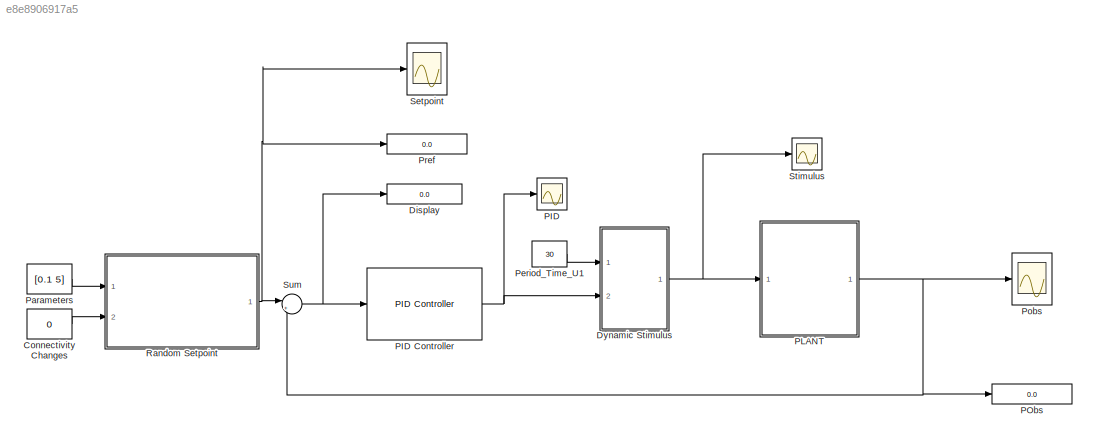
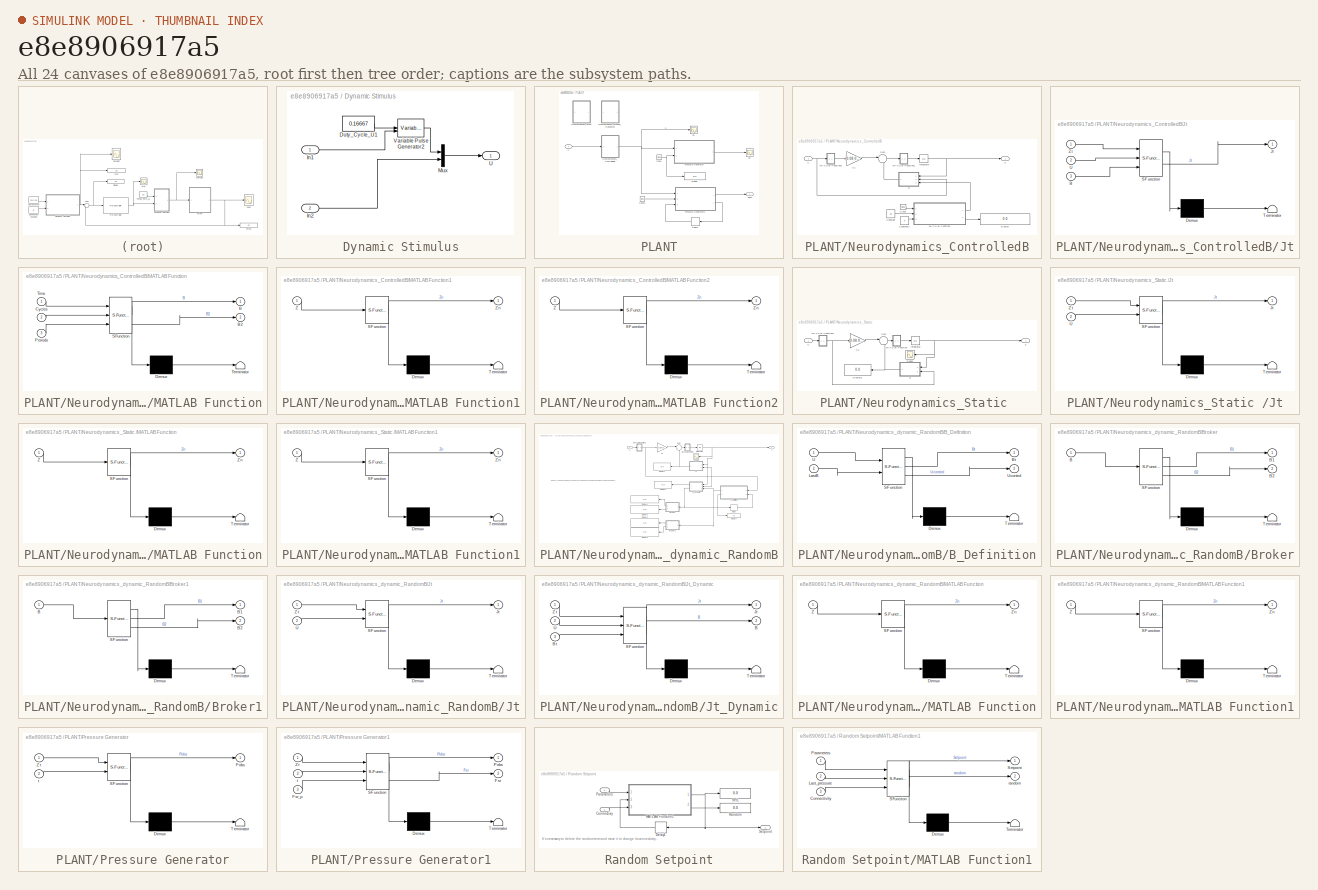
[diagram: thumbnail index - all 24 canvases of the model, root first then tree order]
MODEL slx_e8e8906917a5
KIND model
CONFIG AbsTol = auto
CONFIG EnableMultiTasking = off
CONFIG FixedStep = 0.09
CONFIG MaxStep = auto
CONFIG MinStep = auto
CONFIG RelTol = 1e-10
CONFIG SampleTimeConstraint = Unconstrained
CONFIG SolverName = VariableStepAuto
CONFIG StartTime = 0.0
CONFIG StopTime = 180
BLOCK [Constant] Connectivity Changes
  Value = 0
BLOCK [Display] Display
  Decimation = 1
  Ports = [1]
BLOCK [SubSystem] Dynamic Stimulus
  Ports = [2, 1]
  RequestExecContextInheritance = off
BLOCK [Constant] Dynamic Stimulus/Duty_Cycle_U1
  OutMax = [0.8]
  OutMin = [0]
  Value = 0.16667
BLOCK [Inport] Dynamic Stimulus/In1
BLOCK [Inport] Dynamic Stimulus/In2
  Port = 2
BLOCK [Mux] Dynamic Stimulus/Mux
  DisplayOption = bar
  Inputs = 2
  Ports = [2, 1]
BLOCK [Outport] Dynamic Stimulus/U
BLOCK [VariablePulseGenerator] Dynamic Stimulus/Variable Pulse Generator2
  RunAtFixedTimeIntervals = on
  SampleTime = 1/10.4
BLOCK [Scope] PID
  Floating = off
  NumInputPorts = 1
  Ports = [1]
  ScopeSpecificationString = Simulink.scopes.TimeScopeBlockCfg('CurrentConfiguration', extmgr.ConfigurationSet(extmgr.Configuration('Core','General UI',true,'FigureColor',[1 1 1]),extmgr.Configuration('Core','Source UI',true),extmgr.Configuration('Sources','WiredSimulink',true,'DataLoggingVariableName','ScopeData1'),extmgr.Configuration('Visuals','Time Domain',true,'SerializedDisplays',{struct('MinYLimReal','-3.80534','MaxYLi...<+1528ch>
BLOCK [Reference] PID Controller  REF=slpidlib/PID Controller
  Ports = [1, 1]
  SourceBlock = slpidlib/PID Controller
  SourceProductBaseCode = SL
  SourceType = PID 1dof
BLOCK [SubSystem] PLANT
  Ports = [1, 1]
  RequestExecContextInheritance = off
BLOCK [Clock] PLANT/Clock
BLOCK [Clock] PLANT/Clock1
BLOCK [Delay] PLANT/Delay2
  DelayLength = 1
  InitialCondition = 0.0001
  InputPortMap = u0
  Ports = [1, 1]
BLOCK [Display] PLANT/Display
  Decimation = 1
  Ports = [1]
BLOCK [SubSystem] PLANT/Neurodynamics_ControlledB
  Ports = [1, 1]
  RequestExecContextInheritance = off
BLOCK [Gain] PLANT/Neurodynamics_ControlledB/C1
  Gain = [0.08 0;0.06 0]
  Multiplication = Matrix(K*u) (u vector)
BLOCK [Clock] PLANT/Neurodynamics_ControlledB/Clock
BLOCK [Constant] PLANT/Neurodynamics_ControlledB/Constant
  Value = 30
BLOCK [Constant] PLANT/Neurodynamics_ControlledB/Constant1
  Value = 6
BLOCK [Display] PLANT/Neurodynamics_ControlledB/Display
  Decimation = 1
  Ports = [1]
BLOCK [Integrator] PLANT/Neurodynamics_ControlledB/Integrator
  Ports = [1, 1]
BLOCK [SubSystem] PLANT/Neurodynamics_ControlledB/Jt
  ErrorFcn = Stateflow.Translate.translate
  PermitHierarchicalResolution = ExplicitOnly
  Ports = [3, 1]
  RequestExecContextInheritance = off
  SFBlockType = MATLAB Function
  TreatAsAtomicUnit = on
BLOCK [Demux] PLANT/Neurodynamics_ControlledB/Jt/ Demux 
  Outputs = 1
  Ports = [1, 1]
BLOCK [S-Function] PLANT/Neurodynamics_ControlledB/Jt/ SFunction 
  EnableBusSupport = on
  FunctionName = sf_sfun
  PortCounts = [3 2]
  Ports = [3, 2]
  SFcnIsStateOwnerBlock = off
  SFunctionDeploymentMode = off
  Tag = Stateflow S-Function 12
BLOCK [Terminator] PLANT/Neurodynamics_ControlledB/Jt/ Terminator 
BLOCK [Inport] PLANT/Neurodynamics_ControlledB/Jt/B
  Port = 3
BLOCK [Outport] PLANT/Neurodynamics_ControlledB/Jt/Jt
BLOCK [Inport] PLANT/Neurodynamics_ControlledB/Jt/U
  Port = 2
BLOCK [Inport] PLANT/Neurodynamics_ControlledB/Jt/Zt
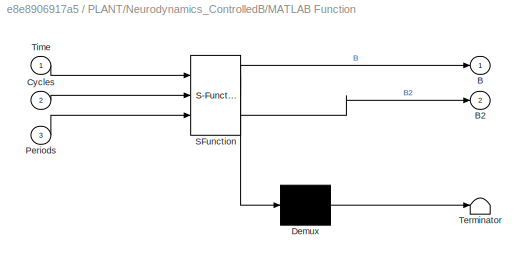
BLOCK [SubSystem] PLANT/Neurodynamics_ControlledB/MATLAB Function
  ErrorFcn = Stateflow.Translate.translate
  PermitHierarchicalResolution = ExplicitOnly
  Ports = [3, 2]
  RequestExecContextInheritance = off
  SFBlockType = MATLAB Function
  TreatAsAtomicUnit = on
BLOCK [Demux] PLANT/Neurodynamics_ControlledB/MATLAB Function/ Demux 
  Outputs = 1
  Ports = [1, 1]
BLOCK [S-Function] PLANT/Neurodynamics_ControlledB/MATLAB Function/ SFunction 
  EnableBusSupport = on
  FunctionName = sf_sfun
  PortCounts = [3 3]
  Ports = [3, 3]
  SFcnIsStateOwnerBlock = off
  SFunctionDeploymentMode = off
  Tag = Stateflow S-Function 5
BLOCK [Terminator] PLANT/Neurodynamics_ControlledB/MATLAB Function/ Terminator 
BLOCK [Outport] PLANT/Neurodynamics_ControlledB/MATLAB Function/B
BLOCK [Outport] PLANT/Neurodynamics_ControlledB/MATLAB Function/B2
  Port = 2
BLOCK [Inport] PLANT/Neurodynamics_ControlledB/MATLAB Function/Cycles
  Port = 2
BLOCK [Inport] PLANT/Neurodynamics_ControlledB/MATLAB Function/Periods
  Port = 3
BLOCK [Inport] PLANT/Neurodynamics_ControlledB/MATLAB Function/Time
BLOCK [SubSystem] PLANT/Neurodynamics_ControlledB/MATLAB Function1
  ErrorFcn = Stateflow.Translate.translate
  PermitHierarchicalResolution = ExplicitOnly
  Ports = [1, 1]
  RequestExecContextInheritance = off
  SFBlockType = MATLAB Function
  TreatAsAtomicUnit = on
BLOCK [Demux] PLANT/Neurodynamics_ControlledB/MATLAB Function1/ Demux 
  Outputs = 1
  Ports = [1, 1]
BLOCK [S-Function] PLANT/Neurodynamics_ControlledB/MATLAB Function1/ SFunction 
  EnableBusSupport = on
  FunctionName = sf_sfun
  PortCounts = [1 2]
  Ports = [1, 2]
  SFcnIsStateOwnerBlock = off
  SFunctionDeploymentMode = off
  Tag = Stateflow S-Function 7
BLOCK [Terminator] PLANT/Neurodynamics_ControlledB/MATLAB Function1/ Terminator 
BLOCK [Inport] PLANT/Neurodynamics_ControlledB/MATLAB Function1/Z
BLOCK [Outport] PLANT/Neurodynamics_ControlledB/MATLAB Function1/Zn
BLOCK [SubSystem] PLANT/Neurodynamics_ControlledB/MATLAB Function2
  ErrorFcn = Stateflow.Translate.translate
  PermitHierarchicalResolution = ExplicitOnly
  Ports = [1, 1]
  RequestExecContextInheritance = off
  SFBlockType = MATLAB Function
  TreatAsAtomicUnit = on
BLOCK [Demux] PLANT/Neurodynamics_ControlledB/MATLAB Function2/ Demux 
  Outputs = 1
  Ports = [1, 1]
BLOCK [S-Function] PLANT/Neurodynamics_ControlledB/MATLAB Function2/ SFunction 
  EnableBusSupport = on
  FunctionName = sf_sfun
  PortCounts = [1 2]
  Ports = [1, 2]
  SFcnIsStateOwnerBlock = off
  SFunctionDeploymentMode = off
  Tag = Stateflow S-Function 8
BLOCK [Terminator] PLANT/Neurodynamics_ControlledB/MATLAB Function2/ Terminator 
BLOCK [Inport] PLANT/Neurodynamics_ControlledB/MATLAB Function2/Z
BLOCK [Outport] PLANT/Neurodynamics_ControlledB/MATLAB Function2/Zn
BLOCK [Sum] PLANT/Neurodynamics_ControlledB/Sum
  Inputs = |++
  Ports = [2, 1]
BLOCK [Inport] PLANT/Neurodynamics_ControlledB/U
BLOCK [Outport] PLANT/Neurodynamics_ControlledB/Z
BLOCK [SubSystem] PLANT/Neurodynamics_Static 
  Commented = on
  Ports = [1, 1]
  RequestExecContextInheritance = off
BLOCK [Gain] PLANT/Neurodynamics_Static /C1
  Gain = [0.08 0;0.06 0]
  Multiplication = Matrix(K*u) (u vector)
BLOCK [Display] PLANT/Neurodynamics_Static /Display1
  Decimation = 1
  Ports = [1]
BLOCK [Integrator] PLANT/Neurodynamics_Static /Integrator
  Ports = [1, 1]
BLOCK [SubSystem] PLANT/Neurodynamics_Static /Jt
  ErrorFcn = Stateflow.Translate.translate
  PermitHierarchicalResolution = ExplicitOnly
  Ports = [2, 1]
  RequestExecContextInheritance = off
  SFBlockType = MATLAB Function
  TreatAsAtomicUnit = on
BLOCK [Demux] PLANT/Neurodynamics_Static /Jt/ Demux 
  Outputs = 1
  Ports = [1, 1]
BLOCK [S-Function] PLANT/Neurodynamics_Static /Jt/ SFunction 
  EnableBusSupport = on
  FunctionName = sf_sfun
  PortCounts = [2 2]
  Ports = [2, 2]
  SFcnIsStateOwnerBlock = off
  SFunctionDeploymentMode = off
  Tag = Stateflow S-Function 18
BLOCK [Terminator] PLANT/Neurodynamics_Static /Jt/ Terminator 
BLOCK [Outport] PLANT/Neurodynamics_Static /Jt/Jt
BLOCK [Inport] PLANT/Neurodynamics_Static /Jt/U
  Port = 2
BLOCK [Inport] PLANT/Neurodynamics_Static /Jt/Zt
BLOCK [SubSystem] PLANT/Neurodynamics_Static /MATLAB Function
  ErrorFcn = Stateflow.Translate.translate
  PermitHierarchicalResolution = ExplicitOnly
  Ports = [1, 1]
  RequestExecContextInheritance = off
  SFBlockType = MATLAB Function
  TreatAsAtomicUnit = on
BLOCK [Demux] PLANT/Neurodynamics_Static /MATLAB Function/ Demux 
  Outputs = 1
  Ports = [1, 1]
BLOCK [S-Function] PLANT/Neurodynamics_Static /MATLAB Function/ SFunction 
  EnableBusSupport = on
  FunctionName = sf_sfun
  PortCounts = [1 2]
  Ports = [1, 2]
  SFcnIsStateOwnerBlock = off
  SFunctionDeploymentMode = off
  Tag = Stateflow S-Function 20
BLOCK [Terminator] PLANT/Neurodynamics_Static /MATLAB Function/ Terminator 
BLOCK [Inport] PLANT/Neurodynamics_Static /MATLAB Function/Z
BLOCK [Outport] PLANT/Neurodynamics_Static /MATLAB Function/Zn
BLOCK [SubSystem] PLANT/Neurodynamics_Static /MATLAB Function1
  ErrorFcn = Stateflow.Translate.translate
  PermitHierarchicalResolution = ExplicitOnly
  Ports = [1, 1]
  RequestExecContextInheritance = off
  SFBlockType = MATLAB Function
  TreatAsAtomicUnit = on
BLOCK [Demux] PLANT/Neurodynamics_Static /MATLAB Function1/ Demux 
  Outputs = 1
  Ports = [1, 1]
BLOCK [S-Function] PLANT/Neurodynamics_Static /MATLAB Function1/ SFunction 
  EnableBusSupport = on
  FunctionName = sf_sfun
  PortCounts = [1 2]
  Ports = [1, 2]
  SFcnIsStateOwnerBlock = off
  SFunctionDeploymentMode = off
  Tag = Stateflow S-Function 21
BLOCK [Terminator] PLANT/Neurodynamics_Static /MATLAB Function1/ Terminator 
BLOCK [Inport] PLANT/Neurodynamics_Static /MATLAB Function1/Z
BLOCK [Outport] PLANT/Neurodynamics_Static /MATLAB Function1/Zn
BLOCK [Scope] PLANT/Neurodynamics_Static /Scope
  Floating = off
  NumInputPorts = 1
  Ports = [1]
  ScopeSpecificationString = Simulink.scopes.TimeScopeBlockCfg('CurrentConfiguration', extmgr.ConfigurationSet(extmgr.Configuration('Core','General UI',true),extmgr.Configuration('Core','Source UI',true),extmgr.Configuration('Sources','WiredSimulink',true,'DataLoggingVariableName','ScopeData1'),extmgr.Configuration('Visuals','Time Domain',true,'SerializedDisplays',{struct('MinYLimReal','-270.33117','MaxYLimReal','30.99894','Y...<+1427ch>
BLOCK [Sum] PLANT/Neurodynamics_Static /Sum
  Inputs = |++
  Ports = [2, 1]
BLOCK [Inport] PLANT/Neurodynamics_Static /U
BLOCK [Outport] PLANT/Neurodynamics_Static /Z
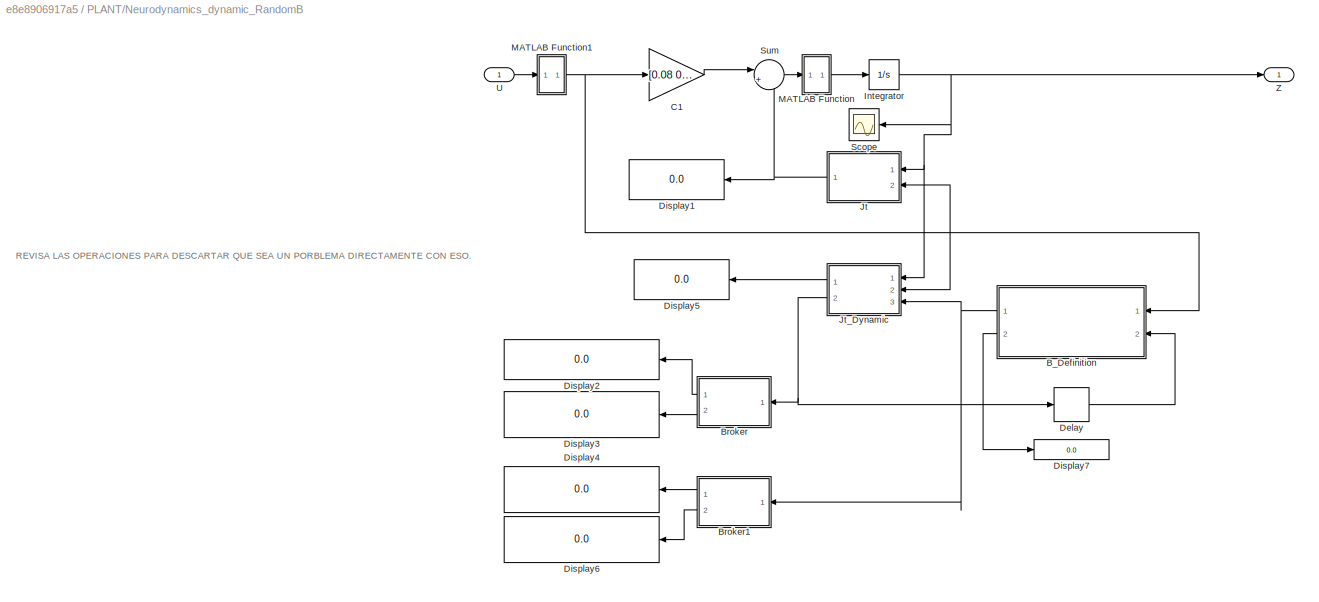
BLOCK [SubSystem] PLANT/Neurodynamics_dynamic_RandomB
  Commented = on
  Ports = [1, 1]
  RequestExecContextInheritance = off
BLOCK [SubSystem] PLANT/Neurodynamics_dynamic_RandomB/B_Definition
  ErrorFcn = Stateflow.Translate.translate
  PermitHierarchicalResolution = ExplicitOnly
  Ports = [2, 2]
  RequestExecContextInheritance = off
  SFBlockType = MATLAB Function
  TreatAsAtomicUnit = on
BLOCK [Demux] PLANT/Neurodynamics_dynamic_RandomB/B_Definition/ Demux 
  Outputs = 1
  Ports = [1, 1]
BLOCK [S-Function] PLANT/Neurodynamics_dynamic_RandomB/B_Definition/ SFunction 
  EnableBusSupport = on
  FunctionName = sf_sfun
  PortCounts = [2 3]
  Ports = [2, 3]
  SFcnIsStateOwnerBlock = off
  SFunctionDeploymentMode = off
  Tag = Stateflow S-Function 10
BLOCK [Terminator] PLANT/Neurodynamics_dynamic_RandomB/B_Definition/ Terminator 
BLOCK [Outport] PLANT/Neurodynamics_dynamic_RandomB/B_Definition/Bt
BLOCK [Inport] PLANT/Neurodynamics_dynamic_RandomB/B_Definition/LastB
  Port = 2
BLOCK [Inport] PLANT/Neurodynamics_dynamic_RandomB/B_Definition/U
BLOCK [Outport] PLANT/Neurodynamics_dynamic_RandomB/B_Definition/Ucontrol
  Port = 2
BLOCK [SubSystem] PLANT/Neurodynamics_dynamic_RandomB/Broker
  ErrorFcn = Stateflow.Translate.translate
  PermitHierarchicalResolution = ExplicitOnly
  Ports = [1, 2]
  RequestExecContextInheritance = off
  SFBlockType = MATLAB Function
  TreatAsAtomicUnit = on
BLOCK [Demux] PLANT/Neurodynamics_dynamic_RandomB/Broker/ Demux 
  Outputs = 1
  Ports = [1, 1]
BLOCK [S-Function] PLANT/Neurodynamics_dynamic_RandomB/Broker/ SFunction 
  EnableBusSupport = on
  FunctionName = sf_sfun
  PortCounts = [1 3]
  Ports = [1, 3]
  SFcnIsStateOwnerBlock = off
  SFunctionDeploymentMode = off
  Tag = Stateflow S-Function 3
BLOCK [Terminator] PLANT/Neurodynamics_dynamic_RandomB/Broker/ Terminator 
BLOCK [Inport] PLANT/Neurodynamics_dynamic_RandomB/Broker/B
BLOCK [Outport] PLANT/Neurodynamics_dynamic_RandomB/Broker/B1
BLOCK [Outport] PLANT/Neurodynamics_dynamic_RandomB/Broker/B2
  Port = 2
BLOCK [SubSystem] PLANT/Neurodynamics_dynamic_RandomB/Broker1
  ErrorFcn = Stateflow.Translate.translate
  PermitHierarchicalResolution = ExplicitOnly
  Ports = [1, 2]
  RequestExecContextInheritance = off
  SFBlockType = MATLAB Function
  TreatAsAtomicUnit = on
BLOCK [Demux] PLANT/Neurodynamics_dynamic_RandomB/Broker1/ Demux 
  Outputs = 1
  Ports = [1, 1]
BLOCK [S-Function] PLANT/Neurodynamics_dynamic_RandomB/Broker1/ SFunction 
  EnableBusSupport = on
  FunctionName = sf_sfun
  PortCounts = [1 3]
  Ports = [1, 3]
  SFcnIsStateOwnerBlock = off
  SFunctionDeploymentMode = off
  Tag = Stateflow S-Function 6
BLOCK [Terminator] PLANT/Neurodynamics_dynamic_RandomB/Broker1/ Terminator 
BLOCK [Inport] PLANT/Neurodynamics_dynamic_RandomB/Broker1/B
BLOCK [Outport] PLANT/Neurodynamics_dynamic_RandomB/Broker1/B1
BLOCK [Outport] PLANT/Neurodynamics_dynamic_RandomB/Broker1/B2
  Port = 2
BLOCK [Gain] PLANT/Neurodynamics_dynamic_RandomB/C1
  Gain = [0.08 0;0.06 0]
  Multiplication = Matrix(K*u) (u vector)
BLOCK [Delay] PLANT/Neurodynamics_dynamic_RandomB/Delay
  DelayLength = 1
  InitialCondition = 0
  InputPortMap = u0
  NameLocation = top
  Ports = [1, 1]
BLOCK [Display] PLANT/Neurodynamics_dynamic_RandomB/Display1
  Decimation = 1
  Ports = [1]
BLOCK [Display] PLANT/Neurodynamics_dynamic_RandomB/Display2
  Decimation = 1
  Ports = [1]
BLOCK [Display] PLANT/Neurodynamics_dynamic_RandomB/Display3
  Decimation = 1
  Ports = [1]
BLOCK [Display] PLANT/Neurodynamics_dynamic_RandomB/Display4
  Decimation = 1
  Ports = [1]
BLOCK [Display] PLANT/Neurodynamics_dynamic_RandomB/Display5
  Decimation = 1
  Ports = [1]
BLOCK [Display] PLANT/Neurodynamics_dynamic_RandomB/Display6
  Decimation = 1
  Ports = [1]
BLOCK [Display] PLANT/Neurodynamics_dynamic_RandomB/Display7
  Decimation = 1
  Ports = [1]
BLOCK [Integrator] PLANT/Neurodynamics_dynamic_RandomB/Integrator
  Ports = [1, 1]
BLOCK [SubSystem] PLANT/Neurodynamics_dynamic_RandomB/Jt
  ErrorFcn = Stateflow.Translate.translate
  PermitHierarchicalResolution = ExplicitOnly
  Ports = [2, 1]
  RequestExecContextInheritance = off
  SFBlockType = MATLAB Function
  TreatAsAtomicUnit = on
BLOCK [Demux] PLANT/Neurodynamics_dynamic_RandomB/Jt/ Demux 
  Outputs = 1
  Ports = [1, 1]
BLOCK [S-Function] PLANT/Neurodynamics_dynamic_RandomB/Jt/ SFunction 
  EnableBusSupport = on
  FunctionName = sf_sfun
  PortCounts = [2 2]
  Ports = [2, 2]
  SFcnIsStateOwnerBlock = off
  SFunctionDeploymentMode = off
  Tag = Stateflow S-Function 11
BLOCK [Terminator] PLANT/Neurodynamics_dynamic_RandomB/Jt/ Terminator 
BLOCK [Outport] PLANT/Neurodynamics_dynamic_RandomB/Jt/Jt
BLOCK [Inport] PLANT/Neurodynamics_dynamic_RandomB/Jt/U
  Port = 2
BLOCK [Inport] PLANT/Neurodynamics_dynamic_RandomB/Jt/Zt
BLOCK [SubSystem] PLANT/Neurodynamics_dynamic_RandomB/Jt_Dynamic
  ErrorFcn = Stateflow.Translate.translate
  PermitHierarchicalResolution = ExplicitOnly
  Ports = [3, 2]
  RequestExecContextInheritance = off
  SFBlockType = MATLAB Function
  TreatAsAtomicUnit = on
BLOCK [Demux] PLANT/Neurodynamics_dynamic_RandomB/Jt_Dynamic/ Demux 
  Outputs = 1
  Ports = [1, 1]
BLOCK [S-Function] PLANT/Neurodynamics_dynamic_RandomB/Jt_Dynamic/ SFunction 
  EnableBusSupport = on
  FunctionName = sf_sfun
  PortCounts = [3 3]
  Ports = [3, 3]
  SFcnIsStateOwnerBlock = off
  SFunctionDeploymentMode = off
  Tag = Stateflow S-Function 9
BLOCK [Terminator] PLANT/Neurodynamics_dynamic_RandomB/Jt_Dynamic/ Terminator 
BLOCK [Outport] PLANT/Neurodynamics_dynamic_RandomB/Jt_Dynamic/B
  Port = 2
BLOCK [Inport] PLANT/Neurodynamics_dynamic_RandomB/Jt_Dynamic/Bt
  Port = 3
BLOCK [Outport] PLANT/Neurodynamics_dynamic_RandomB/Jt_Dynamic/Jt
BLOCK [Inport] PLANT/Neurodynamics_dynamic_RandomB/Jt_Dynamic/U
  Port = 2
BLOCK [Inport] PLANT/Neurodynamics_dynamic_RandomB/Jt_Dynamic/Zt
BLOCK [SubSystem] PLANT/Neurodynamics_dynamic_RandomB/MATLAB Function
  ErrorFcn = Stateflow.Translate.translate
  PermitHierarchicalResolution = ExplicitOnly
  Ports = [1, 1]
  RequestExecContextInheritance = off
  SFBlockType = MATLAB Function
  TreatAsAtomicUnit = on
BLOCK [Demux] PLANT/Neurodynamics_dynamic_RandomB/MATLAB Function/ Demux 
  Outputs = 1
  Ports = [1, 1]
BLOCK [S-Function] PLANT/Neurodynamics_dynamic_RandomB/MATLAB Function/ SFunction 
  EnableBusSupport = on
  FunctionName = sf_sfun
  PortCounts = [1 2]
  Ports = [1, 2]
  SFcnIsStateOwnerBlock = off
  SFunctionDeploymentMode = off
  Tag = Stateflow S-Function 13
BLOCK [Terminator] PLANT/Neurodynamics_dynamic_RandomB/MATLAB Function/ Terminator 
BLOCK [Inport] PLANT/Neurodynamics_dynamic_RandomB/MATLAB Function/Z
BLOCK [Outport] PLANT/Neurodynamics_dynamic_RandomB/MATLAB Function/Zn
BLOCK [SubSystem] PLANT/Neurodynamics_dynamic_RandomB/MATLAB Function1
  ErrorFcn = Stateflow.Translate.translate
  PermitHierarchicalResolution = ExplicitOnly
  Ports = [1, 1]
  RequestExecContextInheritance = off
  SFBlockType = MATLAB Function
  TreatAsAtomicUnit = on
BLOCK [Demux] PLANT/Neurodynamics_dynamic_RandomB/MATLAB Function1/ Demux 
  Outputs = 1
  Ports = [1, 1]
BLOCK [S-Function] PLANT/Neurodynamics_dynamic_RandomB/MATLAB Function1/ SFunction 
  EnableBusSupport = on
  FunctionName = sf_sfun
  PortCounts = [1 2]
  Ports = [1, 2]
  SFcnIsStateOwnerBlock = off
  SFunctionDeploymentMode = off
  Tag = Stateflow S-Function 14
BLOCK [Terminator] PLANT/Neurodynamics_dynamic_RandomB/MATLAB Function1/ Terminator 
BLOCK [Inport] PLANT/Neurodynamics_dynamic_RandomB/MATLAB Function1/Z
BLOCK [Outport] PLANT/Neurodynamics_dynamic_RandomB/MATLAB Function1/Zn
BLOCK [Scope] PLANT/Neurodynamics_dynamic_RandomB/Scope
  Floating = off
  NumInputPorts = 1
  Ports = [1]
  ScopeSpecificationString = Simulink.scopes.TimeScopeBlockCfg('CurrentConfiguration', extmgr.ConfigurationSet(extmgr.Configuration('Core','General UI',true),extmgr.Configuration('Core','Source UI',true),extmgr.Configuration('Sources','WiredSimulink',true,'DataLoggingVariableName','ScopeData1'),extmgr.Configuration('Visuals','Time Domain',true,'SerializedDisplays',{struct('MinYLimReal','-270.33117','MaxYLimReal','30.99894','Y...<+1427ch>
BLOCK [Sum] PLANT/Neurodynamics_dynamic_RandomB/Sum
  Inputs = |++
  Ports = [2, 1]
BLOCK [Inport] PLANT/Neurodynamics_dynamic_RandomB/U
BLOCK [Outport] PLANT/Neurodynamics_dynamic_RandomB/Z
BLOCK [Outport] PLANT/Pobs
BLOCK [SubSystem] PLANT/Pressure Generator
  ErrorFcn = Stateflow.Translate.translate
  PermitHierarchicalResolution = ExplicitOnly
  Ports = [2, 1]
  RequestExecContextInheritance = off
  SFBlockType = MATLAB Function
  TreatAsAtomicUnit = on
BLOCK [Demux] PLANT/Pressure Generator/ Demux 
  Outputs = 1
  Ports = [1, 1]
BLOCK [S-Function] PLANT/Pressure Generator/ SFunction 
  EnableBusSupport = on
  FunctionName = sf_sfun
  PortCounts = [2 2]
  Ports = [2, 2]
  SFcnIsStateOwnerBlock = off
  SFunctionDeploymentMode = off
  Tag = Stateflow S-Function 1
BLOCK [Terminator] PLANT/Pressure Generator/ Terminator 
BLOCK [Outport] PLANT/Pressure Generator/Pobs
BLOCK [Inport] PLANT/Pressure Generator/Zt
BLOCK [Inport] PLANT/Pressure Generator/t
  Port = 2
BLOCK [SubSystem] PLANT/Pressure Generator1
  ErrorFcn = Stateflow.Translate.translate
  PermitHierarchicalResolution = ExplicitOnly
  Ports = [3, 2]
  RequestExecContextInheritance = off
  SFBlockType = MATLAB Function
  TreatAsAtomicUnit = on
BLOCK [Demux] PLANT/Pressure Generator1/ Demux 
  Outputs = 1
  Ports = [1, 1]
BLOCK [S-Function] PLANT/Pressure Generator1/ SFunction 
  EnableBusSupport = on
  FunctionName = sf_sfun
  PortCounts = [3 3]
  Ports = [3, 3]
  SFcnIsStateOwnerBlock = off
  SFunctionDeploymentMode = off
  Tag = Stateflow S-Function 4
BLOCK [Terminator] PLANT/Pressure Generator1/ Terminator 
BLOCK [Outport] PLANT/Pressure Generator1/Fsr
  Port = 2
BLOCK [Inport] PLANT/Pressure Generator1/Fsr_p
  Port = 3
BLOCK [Outport] PLANT/Pressure Generator1/Pobs
BLOCK [Inport] PLANT/Pressure Generator1/Zt
BLOCK [Inport] PLANT/Pressure Generator1/t
  Port = 2
BLOCK [Inport] PLANT/U
BLOCK [Scope] PLANT/Z1
  Floating = off
  NumInputPorts = 1
  Ports = [1]
  ScopeSpecificationString = Simulink.scopes.TimeScopeBlockCfg('CurrentConfiguration', extmgr.ConfigurationSet(extmgr.Configuration('Core','General UI',true,'FigureColor',[0 0 0]),extmgr.Configuration('Core','Source UI',true),extmgr.Configuration('Sources','WiredSimulink',true,'DataLoggingVariableName','ScopeData1'),extmgr.Configuration('Visuals','Time Domain',true,'SerializedDisplays',{struct('MinYLimReal','-0.00212','MaxYLi...<+1653ch>
BLOCK [Scope] PLANT/Z2
  Floating = off
  NumInputPorts = 1
  Ports = [1]
  ScopeSpecificationString = Simulink.scopes.TimeScopeBlockCfg('CurrentConfiguration', extmgr.ConfigurationSet(extmgr.Configuration('Core','General UI',true,'FigureColor',[0 0 0]),extmgr.Configuration('Core','Source UI',true),extmgr.Configuration('Sources','WiredSimulink',true,'DataLoggingVariableName','ScopeData1'),extmgr.Configuration('Visuals','Time Domain',true,'SerializedDisplays',{struct('MinYLimReal','-13.73711','MaxYL...<+1650ch>
BLOCK [Display] PObs
  Decimation = 1
  Ports = [1]
BLOCK [Constant] Parameters
  Value = [0.1 5]
BLOCK [Constant] Period_Time_U1
  Value = 30
BLOCK [Scope] Pobs
  Floating = off
  NumInputPorts = 1
  Ports = [1]
  ScopeSpecificationString = Simulink.scopes.TimeScopeBlockCfg('CurrentConfiguration', extmgr.ConfigurationSet(extmgr.Configuration('Core','General UI',true,'FigureColor',[1 1 1]),extmgr.Configuration('Core','Source UI',true),extmgr.Configuration('Sources','WiredSimulink',true,'DataLoggingVariableName','ScopeData2'),extmgr.Configuration('Visuals','Time Domain',true,'SerializedDisplays',{struct('MinYLimReal','-1.02589','MaxYLi...<+1564ch>
BLOCK [Display] Pref
  Decimation = 1
  Ports = [1]
BLOCK [SubSystem] Random Setpoint
  Ports = [2, 1]
  RequestExecContextInheritance = off
BLOCK [Inport] Random Setpoint/Connectiviy
  Port = 2
BLOCK [Delay] Random Setpoint/Delay1
  DelayLength = 1
  InitialCondition = 0
  InputPortMap = u0
  Ports = [1, 1]
BLOCK [SubSystem] Random Setpoint/MATLAB Function1
  ErrorFcn = Stateflow.Translate.translate
  PermitHierarchicalResolution = ExplicitOnly
  Ports = [3, 2]
  RequestExecContextInheritance = off
  SFBlockType = MATLAB Function
  TreatAsAtomicUnit = on
BLOCK [Demux] Random Setpoint/MATLAB Function1/ Demux 
  Outputs = 1
  Ports = [1, 1]
BLOCK [S-Function] Random Setpoint/MATLAB Function1/ SFunction 
  EnableBusSupport = on
  FunctionName = sf_sfun
  PortCounts = [3 3]
  Ports = [3, 3]
  SFcnIsStateOwnerBlock = off
  SFunctionDeploymentMode = off
  Tag = Stateflow S-Function 2
BLOCK [Terminator] Random Setpoint/MATLAB Function1/ Terminator 
BLOCK [Inport] Random Setpoint/MATLAB Function1/Connectivity
  Port = 3
BLOCK [Inport] Random Setpoint/MATLAB Function1/Last_pressure
  Port = 2
BLOCK [Inport] Random Setpoint/MATLAB Function1/Parameters
BLOCK [Outport] Random Setpoint/MATLAB Function1/Setpoint
BLOCK [Outport] Random Setpoint/MATLAB Function1/random
  Port = 2
BLOCK [Inport] Random Setpoint/Parameters
BLOCK [Display] Random Setpoint/Random
  Decimation = 1
  Ports = [1]
BLOCK [Display] Random Setpoint/Set1
  Decimation = 1
  Ports = [1]
BLOCK [Outport] Random Setpoint/Setpoint
BLOCK [Scope] Setpoint
  Floating = off
  NumInputPorts = 1
  Ports = [1]
  ScopeSpecificationString = Simulink.scopes.TimeScopeBlockCfg('CurrentConfiguration', extmgr.ConfigurationSet(extmgr.Configuration('Core','General UI',true,'FigureColor',[1 1 1]),extmgr.Configuration('Core','Source UI',true),extmgr.Configuration('Sources','WiredSimulink',true,'DataLoggingVariableName','ScopeData1'),extmgr.Configuration('Visuals','Time Domain',true,'SerializedDisplays',{struct('MinYLimReal','4.00000','MaxYLim...<+1520ch>
BLOCK [Scope] Stimulus
  Floating = off
  NumInputPorts = 1
  Ports = [1]
  ScopeSpecificationString = Simulink.scopes.TimeScopeBlockCfg('CurrentConfiguration', extmgr.ConfigurationSet(extmgr.Configuration('Core','General UI',true,'FigureColor',[1 1 1]),extmgr.Configuration('Core','Source UI',true),extmgr.Configuration('Sources','WiredSimulink',true,'DataLoggingVariableName','ScopeData3'),extmgr.Configuration('Visuals','Time Domain',true,'SerializedDisplays',{struct('MinYLimReal','-3.80534','MaxYLi...<+1669ch>
BLOCK [Sum] Sum
  Inputs = |+-
  Ports = [2, 1]
ANNOTATION PLANT/Neurodynamics_dynamic_RandomB: REVISA LAS OPERACIONES PARA DESCARTAR QUE SEA UN PORBLEMA DIRECTAMENTE CON ESO.
ANNOTATION Random Setpoint: It’s necessary to delete the random term and move it to change its connectivity changes.
LINE Connectivity Changes:1 -> Random Setpoint:2
LINE Dynamic Stimulus/Duty_Cycle_U1:1 -> Dynamic Stimulus/Variable Pulse Generator2:1
LINE Dynamic Stimulus/In1:1 -> Dynamic Stimulus/Variable Pulse Generator2:2
LINE Dynamic Stimulus/In2:1 -> Dynamic Stimulus/Mux:2
LINE Dynamic Stimulus/Mux:1 -> Dynamic Stimulus/U:1
LINE Dynamic Stimulus/Variable Pulse Generator2:1 -> Dynamic Stimulus/Mux:1
NET Dynamic Stimulus:1 -> PLANT:1, Stimulus:1
NET PID Controller:1 -> Dynamic Stimulus:2, PID:1
LINE PLANT/Clock1:1 -> PLANT/Pressure Generator1:2
NET PLANT/Clock:1 -> PLANT/Display:1, PLANT/Pressure Generator:2
LINE PLANT/Delay2:1 -> PLANT/Pressure Generator1:3
LINE PLANT/Neurodynamics_ControlledB/C1:1 -> PLANT/Neurodynamics_ControlledB/Sum:1
LINE PLANT/Neurodynamics_ControlledB/Clock:1 -> PLANT/Neurodynamics_ControlledB/MATLAB Function:1
LINE PLANT/Neurodynamics_ControlledB/Constant1:1 -> PLANT/Neurodynamics_ControlledB/MATLAB Function:3
LINE PLANT/Neurodynamics_ControlledB/Constant:1 -> PLANT/Neurodynamics_ControlledB/MATLAB Function:2
NET PLANT/Neurodynamics_ControlledB/Integrator:1 -> PLANT/Neurodynamics_ControlledB/Jt:1, PLANT/Neurodynamics_ControlledB/Z:1
LINE PLANT/Neurodynamics_ControlledB/Jt:1 -> PLANT/Neurodynamics_ControlledB/Sum:2
LINE PLANT/Neurodynamics_ControlledB/MATLAB Function1:1 -> PLANT/Neurodynamics_ControlledB/Integrator:1
LINE PLANT/Neurodynamics_ControlledB/MATLAB Function2:1 -> PLANT/Neurodynamics_ControlledB/C1:1
LINE PLANT/Neurodynamics_ControlledB/MATLAB Function:1 -> PLANT/Neurodynamics_ControlledB/Jt:3
LINE PLANT/Neurodynamics_ControlledB/MATLAB Function:2 -> PLANT/Neurodynamics_ControlledB/Display:1
LINE PLANT/Neurodynamics_ControlledB/Sum:1 -> PLANT/Neurodynamics_ControlledB/MATLAB Function1:1
NET PLANT/Neurodynamics_ControlledB/U:1 -> PLANT/Neurodynamics_ControlledB/Jt:2, PLANT/Neurodynamics_ControlledB/MATLAB Function2:1
NET PLANT/Neurodynamics_ControlledB:1 -> PLANT/Pressure Generator1:1, PLANT/Pressure Generator:1, PLANT/Z2:1
LINE PLANT/Neurodynamics_Static /C1:1 -> PLANT/Neurodynamics_Static /Sum:1
NET PLANT/Neurodynamics_Static /Integrator:1 -> PLANT/Neurodynamics_Static /Jt:1, PLANT/Neurodynamics_Static /Scope:1, PLANT/Neurodynamics_Static /Z:1
NET PLANT/Neurodynamics_Static /Jt:1 -> PLANT/Neurodynamics_Static /Display1:1, PLANT/Neurodynamics_Static /Sum:2
NET PLANT/Neurodynamics_Static /MATLAB Function1:1 -> PLANT/Neurodynamics_Static /C1:1, PLANT/Neurodynamics_Static /Jt:2
LINE PLANT/Neurodynamics_Static /MATLAB Function:1 -> PLANT/Neurodynamics_Static /Integrator:1
LINE PLANT/Neurodynamics_Static /Sum:1 -> PLANT/Neurodynamics_Static /MATLAB Function:1
LINE PLANT/Neurodynamics_Static /U:1 -> PLANT/Neurodynamics_Static /MATLAB Function1:1
NET PLANT/Neurodynamics_dynamic_RandomB/B_Definition:1 -> PLANT/Neurodynamics_dynamic_RandomB/Broker1:1, PLANT/Neurodynamics_dynamic_RandomB/Jt_Dynamic:3
LINE PLANT/Neurodynamics_dynamic_RandomB/B_Definition:2 -> PLANT/Neurodynamics_dynamic_RandomB/Display7:1
LINE PLANT/Neurodynamics_dynamic_RandomB/Broker1:1 -> PLANT/Neurodynamics_dynamic_RandomB/Display4:1
LINE PLANT/Neurodynamics_dynamic_RandomB/Broker1:2 -> PLANT/Neurodynamics_dynamic_RandomB/Display6:1
LINE PLANT/Neurodynamics_dynamic_RandomB/Broker:1 -> PLANT/Neurodynamics_dynamic_RandomB/Display2:1
LINE PLANT/Neurodynamics_dynamic_RandomB/Broker:2 -> PLANT/Neurodynamics_dynamic_RandomB/Display3:1
LINE PLANT/Neurodynamics_dynamic_RandomB/C1:1 -> PLANT/Neurodynamics_dynamic_RandomB/Sum:1
LINE PLANT/Neurodynamics_dynamic_RandomB/Delay:1 -> PLANT/Neurodynamics_dynamic_RandomB/B_Definition:2
NET PLANT/Neurodynamics_dynamic_RandomB/Integrator:1 -> PLANT/Neurodynamics_dynamic_RandomB/Jt:1, PLANT/Neurodynamics_dynamic_RandomB/Jt_Dynamic:1, PLANT/Neurodynamics_dynamic_RandomB/Scope:1, PLANT/Neurodynamics_dynamic_RandomB/Z:1
NET PLANT/Neurodynamics_dynamic_RandomB/Jt:1 -> PLANT/Neurodynamics_dynamic_RandomB/Display1:1, PLANT/Neurodynamics_dynamic_RandomB/Sum:2
LINE PLANT/Neurodynamics_dynamic_RandomB/Jt_Dynamic:1 -> PLANT/Neurodynamics_dynamic_RandomB/Display5:1
NET PLANT/Neurodynamics_dynamic_RandomB/Jt_Dynamic:2 -> PLANT/Neurodynamics_dynamic_RandomB/Broker:1, PLANT/Neurodynamics_dynamic_RandomB/Delay:1
NET PLANT/Neurodynamics_dynamic_RandomB/MATLAB Function1:1 -> PLANT/Neurodynamics_dynamic_RandomB/B_Definition:1, PLANT/Neurodynamics_dynamic_RandomB/C1:1, PLANT/Neurodynamics_dynamic_RandomB/Jt:2, PLANT/Neurodynamics_dynamic_RandomB/Jt_Dynamic:2
LINE PLANT/Neurodynamics_dynamic_RandomB/MATLAB Function:1 -> PLANT/Neurodynamics_dynamic_RandomB/Integrator:1
LINE PLANT/Neurodynamics_dynamic_RandomB/Sum:1 -> PLANT/Neurodynamics_dynamic_RandomB/MATLAB Function:1
LINE PLANT/Neurodynamics_dynamic_RandomB/U:1 -> PLANT/Neurodynamics_dynamic_RandomB/MATLAB Function1:1
LINE PLANT/Pressure Generator1:1 -> PLANT/Pobs:1
LINE PLANT/Pressure Generator1:2 -> PLANT/Delay2:1
LINE PLANT/Pressure Generator:1 -> PLANT/Z1:1
LINE PLANT/U:1 -> PLANT/Neurodynamics_ControlledB:1
NET PLANT:1 -> PObs:1, Pobs:1, Sum:2
LINE Parameters:1 -> Random Setpoint:1
LINE Period_Time_U1:1 -> Dynamic Stimulus:1
LINE Random Setpoint/Connectiviy:1 -> Random Setpoint/MATLAB Function1:3
LINE Random Setpoint/Delay1:1 -> Random Setpoint/MATLAB Function1:2
NET Random Setpoint/MATLAB Function1:1 -> Random Setpoint/Delay1:1, Random Setpoint/Set1:1, Random Setpoint/Setpoint:1
LINE Random Setpoint/MATLAB Function1:2 -> Random Setpoint/Random:1
LINE Random Setpoint/Parameters:1 -> Random Setpoint/MATLAB Function1:1
NET Random Setpoint:1 -> Pref:1, Setpoint:1, Sum:1
NET Sum:1 -> Display:1, PID Controller:1
note: NET lines group one-source signal fan-out (src -> all destinations, sorted); 1:1 wires keep LINE
CHART PLANT/Neurodynamics_dynamic_RandomB/Jt states=1 transitions=1
  STATE_LABEL 'eML_blk_kernel()'
  STATE_LABEL "SCRIPT:\nfunction Jt = fcn(Zt, U)\n   A = [-0.16 -0.49;-0.02 -0.33];\n   nRegions  = size(A,1);\n   M = size(U,1); %nStimuli\n   simulationLength = size(U,2);\n   B = zeros(2,2,2);\n   B1 = [0 0; 0 0]; %There must be a B per stimulus\n   B2 = [-0.02 -0.77; 0.33 -1.31];\n   B(:,:,1) = B1;\n   B(:,:,2) = B2;\n      assert(M == size(B,3),...\n       'Unexpected number of induced connectivity parameters B.');\n   ...<+291ch>"
CHART PLANT/Neurodynamics_ControlledB/Jt states=1 transitions=1
  STATE_LABEL 'eML_blk_kernel()'
  STATE_LABEL 'SCRIPT:\nfunction Jt = fcn(Zt, U,B)\n   A = [-0.16 -0.49;-0.02 -0.33];\n   nRegions  = size(A,1);\n   M = size(U,1); %nStimuli\n   simulationLength = size(U,2);\n%    B = zeros(2,2,2);\n%    B1 = [0 0; 0 0]; %There must be a B per stimulus\n%    %B2_3\n%    B2 = [-0.67 -0.91 ;-0.3 -1.21];\n%    %B2_2\n%    %B2 = [-0.08 -1.08; 1.2054 -0.0076];\n%    %B2_1\n%    %B2 = [-0.02 -0.07; 0.33 -1.31];\n%    B(:,:,1) = B...<+416ch>'
CHART PLANT/Neurodynamics_dynamic_RandomB/MATLAB Function states=1 transitions=1
  STATE_LABEL 'eML_blk_kernel()'
  STATE_LABEL 'SCRIPT:\nfunction Zn = fcn(Z)\n\nZn = Z(:,1);\n'
CHART PLANT/Neurodynamics_dynamic_RandomB/MATLAB Function1 states=1 transitions=1
  STATE_LABEL 'eML_blk_kernel()'
  STATE_LABEL 'SCRIPT:\nfunction Zn = fcn(Z)\n\nZn = Z(:,1);\n'
CHART PLANT/Neurodynamics_Static /Jt states=1 transitions=1
  STATE_LABEL 'eML_blk_kernel()'
  STATE_LABEL "SCRIPT:\nfunction Jt = fcn(Zt, U)\n   A = [-0.16 -0.49;-0.02 -0.33];\n   nRegions  = size(A,1);\n   M = size(U,1); %nStimuli\n   simulationLength = size(U,2);\n   B = zeros(2,2,2);\n   B1 = [0 0; 0 0]; %There must be a B per stimulus\n   B2 = [-0.02 -0.77; 0.33 -1.31];\n   B(:,:,1) = B1;\n   B(:,:,2) = B2;\n      assert(M == size(B,3),...\n       'Unexpected number of induced connectivity parameters B.');\n   ...<+291ch>"
CHART PLANT/Pressure Generator states=1 transitions=1
  STATE_LABEL 'eML_blk_kernel()'
  STATE_LABEL 'SCRIPT:\nfunction Pobs = fcn(Zt, t)\n    R=10000; %Resistor [Ohms];\n    C=0.1; %Capacitor [Faradays];\n    V= Zt(1,:); %Voltage or system reference;\n    Vc = V * (1 - exp(-t/(R*C))); % Voltage at the capacitor  \n    \nPobs = Vc;\n'
CHART PLANT/Neurodynamics_Static /MATLAB Function states=1 transitions=1
  STATE_LABEL 'eML_blk_kernel()'
  STATE_LABEL 'SCRIPT:\nfunction Zn = fcn(Z)\n\nZn = Z(:,1);\n'
CHART PLANT/Neurodynamics_Static /MATLAB Function1 states=1 transitions=1
  STATE_LABEL 'eML_blk_kernel()'
  STATE_LABEL 'SCRIPT:\nfunction Zn = fcn(Z)\n\nZn = Z(:,1);\n'
CHART Random Setpoint/MATLAB Function1 states=1 transitions=1
  STATE_LABEL 'eML_blk_kernel()'
  STATE_LABEL 'SCRIPT:\nfunction [Setpoint, random] = Random_Setpoint(Parameters, Last_pressure, Connectivity)\n    %Parameters = [threshold Start_setpoint]\n    temp = 0;\n   %Pressure Setpoint selection\n    pmin = 5;\n    pmax = 8;\n    new_pressure = pmin + rand(1)*(pmax-pmin);\n\n    %Random used to simulate the connectivity changes, so we must change\n    %the pressure setpoint when changes in the connectitvy are ob...<+795ch>'
CHART PLANT/Neurodynamics_dynamic_RandomB/Broker states=1 transitions=1
  STATE_LABEL 'eML_blk_kernel()'
  STATE_LABEL 'SCRIPT:\nfunction [B1, B2] = fcn(B)\nB1 = B(:,:,1);\nB2 = B(:,:,2);'
CHART PLANT/Pressure Generator1 states=1 transitions=1
  STATE_LABEL 'eML_blk_kernel()'
  STATE_LABEL 'SCRIPT:\nfunction [Pobs,Fsr] = PressureGenerator_sensor(Zt, t,Fsr_p)\n    C = 2; % 0.1F\n    Vcc = 500; %Considering 5V as a real sensor, the value is on mV\n    Rf = 1000; %Fixed resistor 10k ohms\n    kgf = 0.1019716213; % 1N = 0.1019716213 kgf\n    Fsr = 0;\n    Fsrforce = 0;\n\n    Vout = Zt(1) * (1 - exp( -t / C)); %Emulation of the capacitor\n    Fsr = (Vcc - Vout * Rf) / Vout;\n    FsConductance = 100...<+280ch>'
CHART PLANT/Neurodynamics_ControlledB/MATLAB Function states=1 transitions=1
  STATE_LABEL 'eML_blk_kernel()'
  STATE_LABEL 'SCRIPT:\nfunction [B, B2] = ControlledDynamic_B(Time, Cycles, Periods)\n\n   B = zeros(2,2,2);\n   %B1 = [0 0; 0 0]; %There must be a B per stimulus\n   %B2_3\n   %B2 = [-0.67 -0.91 ;-0.3 -1.21];\n   %B2_2\n   %B2 = [-0.08 -1.08; 1.2054 -0.0076];\n   %B2_1\n   %B2 = [-0.02 -0.07; 0.33 -1.31];\n   PCycles = zeros(6,1);\n   for i = 1:Periods\n       PCycles(i) = i * Cycles;   \n   end\n   %random_selector = randi(...<+720ch>'
CHART PLANT/Neurodynamics_dynamic_RandomB/Broker1 states=1 transitions=1
  STATE_LABEL 'eML_blk_kernel()'
  STATE_LABEL 'SCRIPT:\nfunction [B1, B2] = fcn(B)\nB1 = B(:,:,1);\nB2 = B(:,:,2);'
CHART PLANT/Neurodynamics_ControlledB/MATLAB Function1 states=1 transitions=1
  STATE_LABEL 'eML_blk_kernel()'
  STATE_LABEL 'SCRIPT:\nfunction Zn = fcn(Z)\n\nZn = Z(:,1);\n'
CHART PLANT/Neurodynamics_ControlledB/MATLAB Function2 states=1 transitions=1
  STATE_LABEL 'eML_blk_kernel()'
  STATE_LABEL 'SCRIPT:\nfunction Zn = fcn(Z)\n\nZn = Z(:,1);\n'
CHART PLANT/Neurodynamics_dynamic_RandomB/Jt_Dynamic states=1 transitions=1
  STATE_LABEL 'eML_blk_kernel()'
  STATE_LABEL 'SCRIPT:\nfunction [Jt, B] = fcn(Zt, U, Bt)\n\n   A = [-0.16 -0.49;-0.02 -0.33];\n   nRegions  = size(A,1);\n\n   B = zeros(2,2,2);\n   a = 0;\n   B1 = [0 0; 0 0]; %There must be a B per stimulus\n   B2 = [-0.02 -0.77; 0.33 -1.31];\n\n   if Bt(:,:,2) ~= B(:,:,2)\n       B(:,:,:) = Bt(:,:,:);\n   else\n          B(:,:,1) = B1;\n          B(:,:,2) = B2;\n   end\n   M = size(U,1); %nStimuli\n   assert(M == size(B,3),.....<+453ch>'
CHART PLANT/Neurodynamics_dynamic_RandomB/B_Definition states=1 transitions=1
  STATE_LABEL 'eML_blk_kernel()'
  STATE_LABEL 'SCRIPT:\nfunction [Bt, Ucontrol] = B_Definition(U, LastB)\n    Bt = zeros(2, 2, 2);\n   %Control extraction and weight\n   Ucontrol = U(2) * (0.1 + rand(1) * (1-0.1));\n   Threshold = 0.5;\n    if(Ucontrol < Threshold) %Random Ucontrol to test\n        min = -1.5; \n        max =0.5;\n        n = 2;\n        r1 = min + rand(n)*(max-min);\n        r2 = min + rand(n)*(max-min);\n        %Bt(:,:,1) = r1(:,:);\n  ...<+70ch>'
CHART  states=0 transitions=0
CHART  states=0 transitions=0
CHART  states=0 transitions=0
CHART  states=0 transitions=0
CHART  states=0 transitions=0
CHART  states=0 transitions=0
CHART  states=0 transitions=0
CHART  states=0 transitions=0
CHART  states=0 transitions=0
CHART  states=0 transitions=0
CHART  states=0 transitions=0
CHART  states=0 transitions=0
CHART  states=0 transitions=0
CHART  states=0 transitions=0
CHART  states=0 transitions=0
CHART  states=0 transitions=0
CHART  states=0 transitions=0
